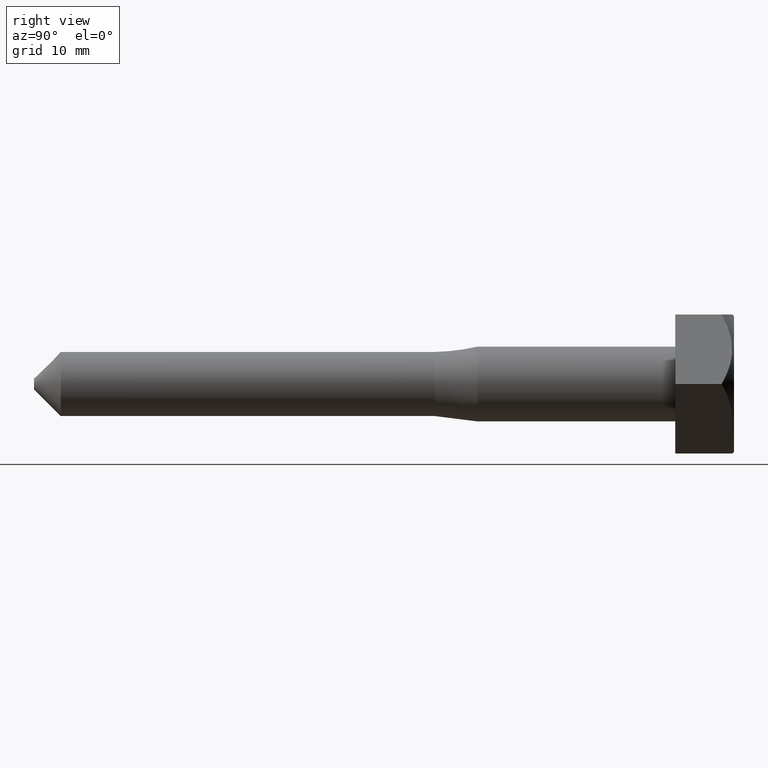
[diagram: clean part render]
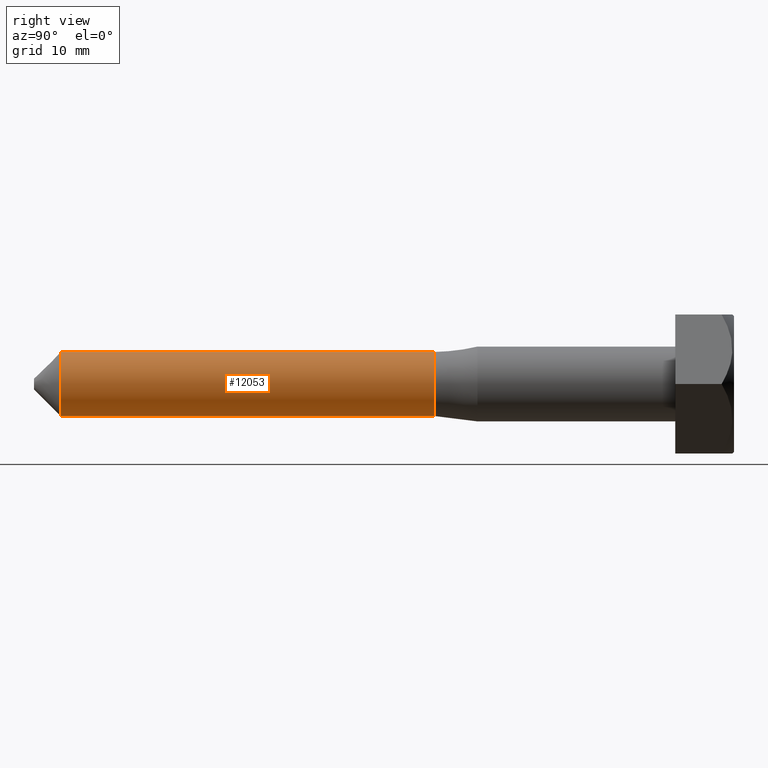
[diagram: same view with one face highlighted and labeled with its STEP entity id]
A machine part, right view. The second image highlights one B-rep face of the part: STEP entity #12053.
In plain terms, the highlighted cylindrical surface (bore or boss wall) has radius 3 mm, axis along (-0, -1, -0).
Its self-contained STEP definition (entity closure, byte-faithful):
#791 = DIRECTION ( 'NONE',  ( 0.0000000000000000000, 0.0000000000000000000, -1.000000000000000000 ) ) ;
#2582 = CIRCLE ( 'NONE', #16001, 3.000000000000002200 ) ;
#3152 = AXIS2_PLACEMENT_3D ( 'NONE', #6275, #11228, #15206 ) ;
#4454 = CYLINDRICAL_SURFACE ( 'NONE', #3152, 3.000000000000007100 ) ;
#4550 = CIRCLE ( 'NONE', #8142, 3.000000000000007100 ) ;
#4656 = EDGE_LOOP ( 'NONE', ( #16113 ) ) ;
#5776 = EDGE_CURVE ( 'NONE', #6753, #6753, #4550, .T. ) ;
#5900 = CARTESIAN_POINT ( 'NONE',  ( 0.0000000000000000000, -25.24999999999999600, 0.0000000000000000000 ) ) ;
#6275 = CARTESIAN_POINT ( 'NONE',  ( 0.0000000000000000000, -2.749999999999999600, 0.0000000000000000000 ) ) ;
#6753 = VERTEX_POINT ( 'NONE', #16227 ) ;
#7439 = CARTESIAN_POINT ( 'NONE',  ( 0.0000000000000000000, -25.24999999999999600, -3.000000000000002200 ) ) ;
#8142 = AXIS2_PLACEMENT_3D ( 'NONE', #8420, #16033, #13510 ) ;
#8224 = DIRECTION ( 'NONE',  ( -0.0000000000000000000, -1.000000000000000000, -0.0000000000000000000 ) ) ;
#8420 = CARTESIAN_POINT ( 'NONE',  ( 0.0000000000000000000, -60.25000000000001400, 0.0000000000000000000 ) ) ;
#9267 = EDGE_LOOP ( 'NONE', ( #13382 ) ) ;
#9403 = FACE_OUTER_BOUND ( 'NONE', #4656, .T. ) ;
#11198 = FACE_OUTER_BOUND ( 'NONE', #9267, .T. ) ;
#11228 = DIRECTION ( 'NONE',  ( -0.0000000000000000000, -1.000000000000000000, -0.0000000000000000000 ) ) ;
#12053 = ADVANCED_FACE ( 'NONE', ( #11198, #9403 ), #4454, .T. ) ;
#13382 = ORIENTED_EDGE ( 'NONE', *, *, #5776, .T. ) ;
#13510 = DIRECTION ( 'NONE',  ( 0.0000000000000000000, 0.0000000000000000000, -1.000000000000000000 ) ) ;
#15142 = VERTEX_POINT ( 'NONE', #7439 ) ;
#15206 = DIRECTION ( 'NONE',  ( 0.0000000000000000000, 0.0000000000000000000, -1.000000000000000000 ) ) ;
#16001 = AXIS2_PLACEMENT_3D ( 'NONE', #5900, #8224, #791 ) ;
#16033 = DIRECTION ( 'NONE',  ( 0.0000000000000000000, 1.000000000000000000, 0.0000000000000000000 ) ) ;
#16113 = ORIENTED_EDGE ( 'NONE', *, *, #16494, .T. ) ;
#16227 = CARTESIAN_POINT ( 'NONE',  ( 0.0000000000000000000, -60.25000000000001400, -3.000000000000007100 ) ) ;
#16494 = EDGE_CURVE ( 'NONE', #15142, #15142, #2582, .T. ) ;